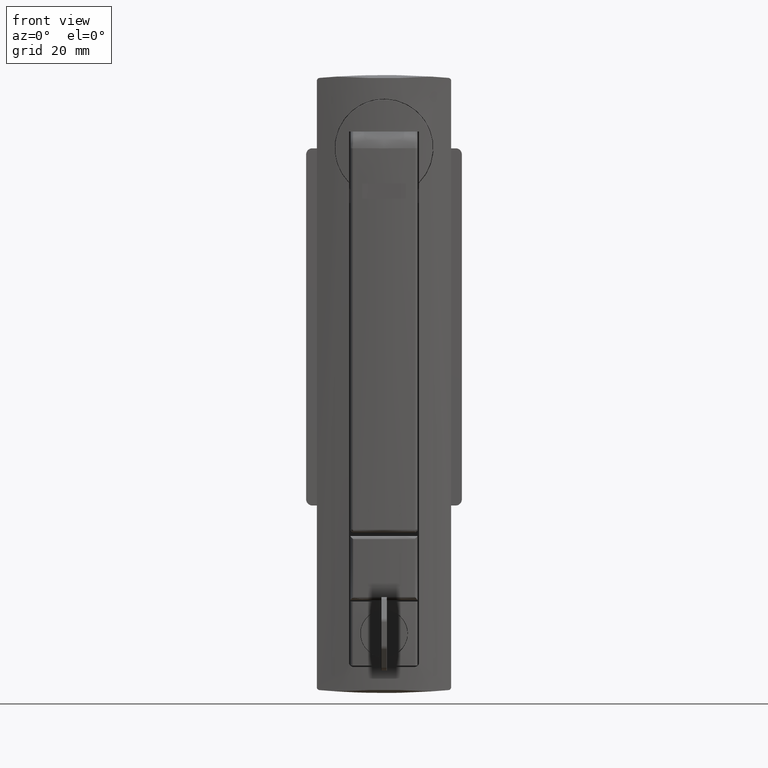
[diagram: clean part render]
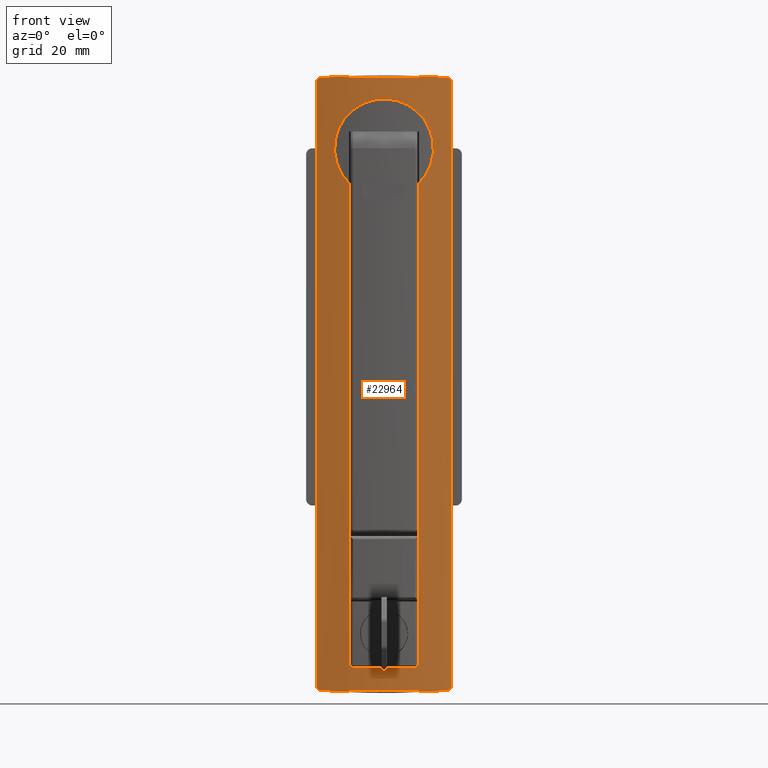
[diagram: same view with one face highlighted and labeled with its STEP entity id]
A machine part, front view. The second image highlights one B-rep face of the part: STEP entity #22964.
In plain terms, the highlighted face is a freeform B-spline surface patch.
Its self-contained STEP definition (entity closure, byte-faithful):
#20247=CARTESIAN_POINT('',(3.160465155945720,-21.086956521739200,-177.481436092780510));
#20248=VERTEX_POINT('',#20247);
#20249=CARTESIAN_POINT('',(3.399999948023935,-21.999999824456800,-176.485223985181510));
#20250=VERTEX_POINT('',#20249);
#20251=CARTESIAN_POINT('',(3.160465155945720,-21.086956521739200,-177.481436092780510));
#20252=CARTESIAN_POINT('',(3.176146796481194,-21.148113938493541,-177.476097835797900));
#20253=CARTESIAN_POINT('',(3.191544668788875,-21.207881420078909,-177.465254642743790));
#20254=CARTESIAN_POINT('',(3.214222281856353,-21.295527532909979,-177.441038910225100));
#20255=CARTESIAN_POINT('',(3.221711087124875,-21.324406585618782,-177.431633298113010));
#20256=CARTESIAN_POINT('',(3.236542511079366,-21.381480005002889,-177.410104099671800));
#20257=CARTESIAN_POINT('',(3.243917960827226,-21.409800081027640,-177.397917423780600));
#20258=CARTESIAN_POINT('',(3.265564633253846,-21.492748953609759,-177.357565744932090));
#20259=CARTESIAN_POINT('',(3.279246630147217,-21.544949924546419,-177.325917164462710));
#20260=CARTESIAN_POINT('',(3.298641397255683,-21.618693575225329,-177.271450492279200));
#20261=CARTESIAN_POINT('',(3.304917078294625,-21.642510391936899,-177.252121979288090));
#20262=CARTESIAN_POINT('',(3.317073973934262,-21.688570931926840,-177.211049176820010));
#20263=CARTESIAN_POINT('',(3.322981713096209,-21.710914598155849,-177.189185079041490));
#20264=CARTESIAN_POINT('',(3.339757081506664,-21.774265761854270,-177.121113661288010));
#20265=CARTESIAN_POINT('',(3.349762748644098,-21.811921379892389,-177.072263350285110));
#20266=CARTESIAN_POINT('',(3.362983116339236,-21.861570908360239,-176.993803827186810));
#20267=CARTESIAN_POINT('',(3.367090066390817,-21.876974620337009,-176.966781231287090));
#20268=CARTESIAN_POINT('',(3.374677070130000,-21.905403507013052,-176.910930874344190));
#20269=CARTESIAN_POINT('',(3.378145821752639,-21.918386229950880,-176.882141354267500));
#20270=CARTESIAN_POINT('',(3.387367400727190,-21.952874639394409,-176.794960296551890));
#20271=CARTESIAN_POINT('',(3.392033081510069,-21.970287650008299,-176.735152272849600));
#20272=CARTESIAN_POINT('',(3.398359666262946,-21.993888657775148,-176.612139739448910));
#20273=CARTESIAN_POINT('',(3.399999995098918,-21.999999999914380,-176.548647419653290));
#20274=CARTESIAN_POINT('',(3.399999948023935,-21.999999824456800,-176.485223985181510));
#20275=B_SPLINE_CURVE_WITH_KNOTS('',3,(#20251,#20252,#20253,#20254,#20255,#20256,#20257,#20258,#20259,#20260,#20261,#20262,#20263,#20264,#20265,#20266,#20267,#20268,#20269,#20270,#20271,#20272,#20273,#20274),.UNSPECIFIED.,.F.,.U.,(4,2,2,2,2,2,2,2,2,2,2,4),(0.0,0.125000000000008,0.187500000000008,0.250000000000009,0.374999999999980,0.437499999999969,0.499999999999957,0.624999999999929,0.687499999999940,0.749999999999951,0.874999999999975,1.0),.UNSPECIFIED.);
#20276=EDGE_CURVE('',#20248,#20250,#20275,.T.);
#20322=CARTESIAN_POINT('',(3.399999948023935,21.999999824456800,-176.485223985181510));
#20323=VERTEX_POINT('',#20322);
#20324=CARTESIAN_POINT('',(3.160465155945705,21.086956521739150,-177.481436092780510));
#20325=VERTEX_POINT('',#20324);
#20326=CARTESIAN_POINT('',(3.399999948023935,21.999999824456800,-176.485223985181510));
#20327=CARTESIAN_POINT('',(3.399999948023935,22.000000000000011,-176.548588373831000));
#20328=CARTESIAN_POINT('',(3.398398214138502,21.994032297920711,-176.610892402960590));
#20329=CARTESIAN_POINT('',(3.393707768017735,21.976535061739071,-176.702830196784990));
#20330=CARTESIAN_POINT('',(3.391760454252788,21.969268476659881,-176.733221341728010));
#20331=CARTESIAN_POINT('',(3.387087709179019,21.951818705563980,-176.793485595569710));
#20332=CARTESIAN_POINT('',(3.384346709018239,21.941577239518409,-176.823473032409400));
#20333=CARTESIAN_POINT('',(3.375121078202764,21.907074003023670,-176.910826166516700));
#20334=CARTESIAN_POINT('',(3.367614240106311,21.878961831067159,-176.966131905503290));
#20335=CARTESIAN_POINT('',(3.349997427834721,21.812804104831230,-177.071053154368600));
#20336=CARTESIAN_POINT('',(3.339782959999710,21.774362748881789,-177.120961781971600));
#20337=CARTESIAN_POINT('',(3.317553248029276,21.690415063566260,-177.211259282618190));
#20338=CARTESIAN_POINT('',(3.305480786437767,21.644695794076458,-177.252136077944810));
#20339=CARTESIAN_POINT('',(3.285972379716216,21.570524228630990,-177.307080913592190));
#20340=CARTESIAN_POINT('',(3.279204581339683,21.544746779559240,-177.324386524109090));
#20341=CARTESIAN_POINT('',(3.265445665848451,21.492235476093160,-177.356227462014400));
#20342=CARTESIAN_POINT('',(3.258434505045103,21.465425825314519,-177.370833605037690));
#20343=CARTESIAN_POINT('',(3.237022560574725,21.383378981339220,-177.410817279924600));
#20344=CARTESIAN_POINT('',(3.222246676233270,21.326537237962519,-177.432391819737800));
#20345=CARTESIAN_POINT('',(3.191696434791511,21.208471471839189,-177.465169453063910));
#20346=CARTESIAN_POINT('',(3.176133804474773,21.148063270481490,-177.476102258464610));
#20347=CARTESIAN_POINT('',(3.160465155945715,21.086956521739150,-177.481436092780510));
#20348=B_SPLINE_CURVE_WITH_KNOTS('',3,(#20326,#20327,#20328,#20329,#20330,#20331,#20332,#20333,#20334,#20335,#20336,#20337,#20338,#20339,#20340,#20341,#20342,#20343,#20344,#20345,#20346,#20347),.UNSPECIFIED.,.F.,.U.,(4,2,2,2,2,2,2,2,2,2,4),(0.0,0.125000000000003,0.187500000000003,0.250000000000004,0.375000000000003,0.500000000000001,0.625000000000000,0.687500000000002,0.750000000000004,0.875000000000002,1.0),.UNSPECIFIED.);
#20349=EDGE_CURVE('',#20323,#20325,#20348,.T.);
#20395=CARTESIAN_POINT('',(3.160465155945705,21.086956521739150,23.081436092780699));
#20396=VERTEX_POINT('',#20395);
#20397=CARTESIAN_POINT('',(3.399999948023935,21.999999824456800,22.085223985181649));
#20398=VERTEX_POINT('',#20397);
#20399=CARTESIAN_POINT('',(3.160465155945700,21.086956521739150,23.081436092780649));
#20400=CARTESIAN_POINT('',(3.176146796481175,21.148113938493491,23.076097835798091));
#20401=CARTESIAN_POINT('',(3.191544668788872,21.207881420078881,23.065254642743859));
#20402=CARTESIAN_POINT('',(3.214222281856351,21.295527532909940,23.041038910225222));
#20403=CARTESIAN_POINT('',(3.221711087124863,21.324406585618750,23.031633298113171));
#20404=CARTESIAN_POINT('',(3.236542511079352,21.381480005002850,23.010104099671828));
#20405=CARTESIAN_POINT('',(3.243917960827213,21.409800081027601,22.997917423780692));
#20406=CARTESIAN_POINT('',(3.265564633253833,21.492748953609730,22.957565744932189));
#20407=CARTESIAN_POINT('',(3.279246630147203,21.544949924546358,22.925917164462771));
#20408=CARTESIAN_POINT('',(3.298641397255671,21.618693575225290,22.871450492279401));
#20409=CARTESIAN_POINT('',(3.304917078294613,21.642510391936860,22.852121979288281));
#20410=CARTESIAN_POINT('',(3.317073973934251,21.688570931926801,22.811049176820159));
#20411=CARTESIAN_POINT('',(3.322981713096202,21.710914598155831,22.789185079041609));
#20412=CARTESIAN_POINT('',(3.339757081506654,21.774265761854249,22.721113661288140));
#20413=CARTESIAN_POINT('',(3.349762748644087,21.811921379892361,22.672263350285149));
#20414=CARTESIAN_POINT('',(3.362983116339227,21.861570908360228,22.593803827186971));
#20415=CARTESIAN_POINT('',(3.367090066390790,21.876974620336998,22.566781231287280));
#20416=CARTESIAN_POINT('',(3.374677070129975,21.905403507013041,22.510930874344300));
#20417=CARTESIAN_POINT('',(3.378145821752632,21.918386229950880,22.482141354267679));
#20418=CARTESIAN_POINT('',(3.387367400727183,21.952874639394409,22.394960296552039));
#20419=CARTESIAN_POINT('',(3.392033081510077,21.970287650008281,22.335152272849712));
#20420=CARTESIAN_POINT('',(3.398359666262956,21.993888657775141,22.212139739448951));
#20421=CARTESIAN_POINT('',(3.399999995098914,21.999999999914380,22.148647419653241));
#20422=CARTESIAN_POINT('',(3.399999948023935,21.999999824456800,22.085223985181649));
#20423=B_SPLINE_CURVE_WITH_KNOTS('',3,(#20399,#20400,#20401,#20402,#20403,#20404,#20405,#20406,#20407,#20408,#20409,#20410,#20411,#20412,#20413,#20414,#20415,#20416,#20417,#20418,#20419,#20420,#20421,#20422),.UNSPECIFIED.,.F.,.U.,(4,2,2,2,2,2,2,2,2,2,2,4),(0.0,0.124999999999996,0.187499999999991,0.249999999999986,0.374999999999982,0.437499999999982,0.499999999999983,0.624999999999984,0.687499999999986,0.749999999999988,0.874999999999994,1.0),.UNSPECIFIED.);
#20424=EDGE_CURVE('',#20396,#20398,#20423,.T.);
#20470=CARTESIAN_POINT('',(3.399999948023935,-21.999999824456800,22.085223985181649));
#20471=VERTEX_POINT('',#20470);
#20472=CARTESIAN_POINT('',(3.160465155945730,-21.086956521739200,23.081436092780649));
#20473=VERTEX_POINT('',#20472);
#20474=CARTESIAN_POINT('',(3.399999948023935,-21.999999824456800,22.085223985181649));
#20475=CARTESIAN_POINT('',(3.399999948023935,-22.0,22.148588373831071));
#20476=CARTESIAN_POINT('',(3.398398214138481,-21.994032297920700,22.210892402960649));
#20477=CARTESIAN_POINT('',(3.393707768017714,-21.976535061739060,22.302830196785131));
#20478=CARTESIAN_POINT('',(3.391760454252784,-21.969268476659870,22.333221341728109));
#20479=CARTESIAN_POINT('',(3.387087709179015,-21.951818705563969,22.393485595569832));
#20480=CARTESIAN_POINT('',(3.384346709018232,-21.941577239518391,22.423473032409550));
#20481=CARTESIAN_POINT('',(3.375121078202759,-21.907074003023649,22.510826166516821));
#20482=CARTESIAN_POINT('',(3.367614240106297,-21.878961831067130,22.566131905503330));
#20483=CARTESIAN_POINT('',(3.349997427834713,-21.812804104831230,22.671053154368810));
#20484=CARTESIAN_POINT('',(3.339782959999703,-21.774362748881760,22.720961781971699));
#20485=CARTESIAN_POINT('',(3.317553248029272,-21.690415063566260,22.811259282618320));
#20486=CARTESIAN_POINT('',(3.305480786437780,-21.644695794076469,22.852136077945019));
#20487=CARTESIAN_POINT('',(3.285972379716230,-21.570524228631012,22.907080913592289));
#20488=CARTESIAN_POINT('',(3.279204581339669,-21.544746779559240,22.924386524109210));
#20489=CARTESIAN_POINT('',(3.265445665848441,-21.492235476093182,22.956227462014461));
#20490=CARTESIAN_POINT('',(3.258434505045095,-21.465425825314519,22.970833605037789));
#20491=CARTESIAN_POINT('',(3.237022560574721,-21.383378981339231,23.010817279924719));
#20492=CARTESIAN_POINT('',(3.222246676233281,-21.326537237962540,23.032391819737850));
#20493=CARTESIAN_POINT('',(3.191696434791526,-21.208471471839239,23.065169453064058));
#20494=CARTESIAN_POINT('',(3.176133804474780,-21.148063270481540,23.076102258464850));
#20495=CARTESIAN_POINT('',(3.160465155945730,-21.086956521739200,23.081436092780649));
#20496=B_SPLINE_CURVE_WITH_KNOTS('',3,(#20474,#20475,#20476,#20477,#20478,#20479,#20480,#20481,#20482,#20483,#20484,#20485,#20486,#20487,#20488,#20489,#20490,#20491,#20492,#20493,#20494,#20495),.UNSPECIFIED.,.F.,.U.,(4,2,2,2,2,2,2,2,2,2,4),(0.0,0.124999999999993,0.187499999999993,0.249999999999993,0.374999999999995,0.499999999999997,0.624999999999999,0.687500000000000,0.750000000000001,0.875000000000001,1.0),.UNSPECIFIED.);
#20497=EDGE_CURVE('',#20471,#20473,#20496,.T.);
#20543=CARTESIAN_POINT('',(1.944449914768760,15.594107204586800,-177.898086398408990));
#20544=VERTEX_POINT('',#20543);
#20545=CARTESIAN_POINT('',(1.944449914768726,15.594107204586811,-177.898086398409110));
#20546=CARTESIAN_POINT('',(2.288635519542229,17.436059759161999,-177.779392874715110));
#20547=CARTESIAN_POINT('',(2.693808360119248,19.267024220712099,-177.640292807621710));
#20548=CARTESIAN_POINT('',(3.160465155945679,21.086956521739161,-177.481436092780710));
#20549=QUASI_UNIFORM_CURVE('',3,(#20545,#20546,#20547,#20548),.UNSPECIFIED.,.F.,.U.);
#20550=EDGE_CURVE('',#20544,#20325,#20549,.T.);
#20567=CARTESIAN_POINT('',(1.944449914768760,-15.594107204586800,-177.898086398408990));
#20568=VERTEX_POINT('',#20567);
#20569=CARTESIAN_POINT('',(3.160465155945694,-21.086956521739211,-177.481436092780710));
#20570=CARTESIAN_POINT('',(2.692802118711630,-19.263099942191481,-177.640635346733400));
#20571=CARTESIAN_POINT('',(2.287897529962212,-17.432110315102420,-177.779647372818690));
#20572=CARTESIAN_POINT('',(1.944449914768726,-15.594107204586800,-177.898086398409110));
#20573=QUASI_UNIFORM_CURVE('',3,(#20569,#20570,#20571,#20572),.UNSPECIFIED.,.F.,.U.);
#20574=EDGE_CURVE('',#20248,#20568,#20573,.T.);
#20606=CARTESIAN_POINT('',(1.944449914768875,-15.594107204587550,23.498086398409001));
#20607=VERTEX_POINT('',#20606);
#20608=CARTESIAN_POINT('',(1.944449914768860,-15.594107204587550,23.498086398409001));
#20609=CARTESIAN_POINT('',(2.288635519529671,-17.436059759094729,23.379392874719478));
#20610=CARTESIAN_POINT('',(2.693808360102132,-19.267024220645300,23.240292807627512));
#20611=CARTESIAN_POINT('',(3.160465155945702,-21.086956521739211,23.081436092780692));
#20612=QUASI_UNIFORM_CURVE('',3,(#20608,#20609,#20610,#20611),.UNSPECIFIED.,.F.,.U.);
#20613=EDGE_CURVE('',#20607,#20473,#20612,.T.);
#20630=CARTESIAN_POINT('',(1.944449914768875,15.594107204587550,23.498086398409001));
#20631=VERTEX_POINT('',#20630);
#20632=CARTESIAN_POINT('',(3.160465155945689,21.086956521739150,23.081436092780692));
#20633=CARTESIAN_POINT('',(2.692802118711831,19.263099942192230,23.240635346733399));
#20634=CARTESIAN_POINT('',(2.287897529962414,17.432110315103440,23.379647372818670));
#20635=CARTESIAN_POINT('',(1.944449914768862,15.594107204587550,23.498086398408990));
#20636=QUASI_UNIFORM_CURVE('',3,(#20632,#20633,#20634,#20635),.UNSPECIFIED.,.F.,.U.);
#20637=EDGE_CURVE('',#20396,#20631,#20636,.T.);
#20661=CARTESIAN_POINT('',(1.944449914768859,15.594107204587569,23.498086398408962));
#20662=CARTESIAN_POINT('',(-0.969450992060930,-5.724587E-014,22.493292868522317));
#20663=CARTESIAN_POINT('',(1.944449914768875,-15.594107204587550,23.498086398409001));
#20671=(BOUNDED_CURVE()B_SPLINE_CURVE(2,(#20661,#20662,#20663),.UNSPECIFIED.,.F.,.U.)CURVE()GEOMETRIC_REPRESENTATION_ITEM()QUASI_UNIFORM_CURVE()RATIONAL_B_SPLINE_CURVE((1.0,0.982986110168260,1.0))REPRESENTATION_ITEM(''));
#20672=EDGE_CURVE('',#20631,#20607,#20671,.T.);
#20682=CARTESIAN_POINT('',(1.944449914768720,-15.594107204586800,-177.898086398409110));
#20683=CARTESIAN_POINT('',(-0.969450992060764,0.0,-176.893292868522420));
#20684=CARTESIAN_POINT('',(1.944449914768720,15.594107204586830,-177.898086398409110));
#20692=(BOUNDED_CURVE()B_SPLINE_CURVE(2,(#20682,#20683,#20684),.UNSPECIFIED.,.F.,.U.)CURVE()GEOMETRIC_REPRESENTATION_ITEM()QUASI_UNIFORM_CURVE()RATIONAL_B_SPLINE_CURVE((1.0,0.982986110168268,1.0))REPRESENTATION_ITEM(''));
#20693=EDGE_CURVE('',#20568,#20544,#20692,.T.);
#21490=CARTESIAN_POINT('',(1.282479220963404,-11.500000000000000,-168.500000000000000));
#21491=VERTEX_POINT('',#21490);
#21514=CARTESIAN_POINT('',(1.090997145964014,-10.0,-170.0));
#21515=VERTEX_POINT('',#21514);
#21521=CARTESIAN_POINT('',(1.282479220963441,-11.500000000000000,-168.500000000000000));
#21522=CARTESIAN_POINT('',(1.282479220963442,-11.500000000000000,-168.549578072354110));
#21523=CARTESIAN_POINT('',(1.282140738015424,-11.497524968083960,-168.599186951891710));
#21524=CARTESIAN_POINT('',(1.280813505059759,-11.487810723393769,-168.697074434706590));
#21525=CARTESIAN_POINT('',(1.278836495111763,-11.473335772345591,-168.794059954502810));
#21526=CARTESIAN_POINT('',(1.275582338599117,-11.449449256713150,-168.889262547861900));
#21527=CARTESIAN_POINT('',(1.271684551108403,-11.420774418717190,-168.983558197193590));
#21528=CARTESIAN_POINT('',(1.269398670600784,-11.403930572451911,-169.030483158468290));
#21529=CARTESIAN_POINT('',(1.261708082870795,-11.347099569290650,-169.167125539273800));
#21530=CARTESIAN_POINT('',(1.255467714938726,-11.300801305062899,-169.253341047810410));
#21531=CARTESIAN_POINT('',(1.244532903618079,-11.218981582815671,-169.375491629399390));
#21532=CARTESIAN_POINT('',(1.240618916321979,-11.189594678008920,-169.415049184443890));
#21533=CARTESIAN_POINT('',(1.232277130882613,-11.126675569809590,-169.491490125161500));
#21534=CARTESIAN_POINT('',(1.227909676089172,-11.093598206366430,-169.527830175972700));
#21535=CARTESIAN_POINT('',(1.214257420465466,-10.989684506236250,-169.631411599970510));
#21536=CARTESIAN_POINT('',(1.204427771911109,-10.914210231947530,-169.693264966825890));
#21537=CARTESIAN_POINT('',(1.188649231000660,-10.791558106472189,-169.775088691578390));
#21538=CARTESIAN_POINT('',(1.183206117300475,-10.749007895814801,-169.800533159829510));
#21539=CARTESIAN_POINT('',(1.172217718771418,-10.662564067771861,-169.846628450578210));
#21540=CARTESIAN_POINT('',(1.161070827960587,-10.574341435873430,-169.888247345375900));
#21541=CARTESIAN_POINT('',(1.149631607434856,-10.482623913549141,-169.921077221143800));
#21542=CARTESIAN_POINT('',(1.138052557341260,-10.389140074666100,-169.949467596282200));
#21543=CARTESIAN_POINT('',(1.132172829412127,-10.341348746537260,-169.961474776316410));
#21544=CARTESIAN_POINT('',(1.114467233612297,-10.196387905975721,-169.990349537750400));
#21545=CARTESIAN_POINT('',(1.102705901497997,-10.098713331783729,-170.0));
#21546=CARTESIAN_POINT('',(1.090997145964014,-10.0,-170.0));
#21547=B_SPLINE_CURVE_WITH_KNOTS('',3,(#21521,#21522,#21523,#21524,#21525,#21526,#21527,#21528,#21529,#21530,#21531,#21532,#21533,#21534,#21535,#21536,#21537,#21538,#21539,#21540,#21541,#21542,#21543,#21544,#21545,#21546),.UNSPECIFIED.,.F.,.U.,(4,2,1,2,2,2,2,2,2,2,1,2,2,4),(0.0,0.062500000000008,0.125000000000016,0.187500000000024,0.250000000000031,0.375000000000047,0.437500000000041,0.500000000000034,0.625000000000022,0.687500000000017,0.750000000000012,0.812500000000006,0.875000000000001,1.0),.UNSPECIFIED.);
#21548=EDGE_CURVE('',#21491,#21515,#21547,.T.);
#21566=CARTESIAN_POINT('',(1.090997145964084,10.0,-170.0));
#21567=VERTEX_POINT('',#21566);
#21573=CARTESIAN_POINT('',(1.090997145964057,-9.999999999999982,-170.0));
#21574=CARTESIAN_POINT('',(-0.095140057836979,1.908196E-014,-169.999999999999970));
#21575=CARTESIAN_POINT('',(1.090997145964057,10.0,-170.0));
#21583=(BOUNDED_CURVE()B_SPLINE_CURVE(2,(#21573,#21574,#21575),.UNSPECIFIED.,.F.,.U.)CURVE()GEOMETRIC_REPRESENTATION_ITEM()QUASI_UNIFORM_CURVE()RATIONAL_B_SPLINE_CURVE((1.0,0.993038761517795,1.0))REPRESENTATION_ITEM(''));
#21584=EDGE_CURVE('',#21515,#21567,#21583,.T.);
#21619=CARTESIAN_POINT('',(1.282479220963404,11.500000000000000,-168.500000000000000));
#21620=VERTEX_POINT('',#21619);
#21626=CARTESIAN_POINT('',(1.090997145964014,10.0,-170.0));
#21627=CARTESIAN_POINT('',(1.102719782119424,10.098830355525850,-170.000000000000110));
#21628=CARTESIAN_POINT('',(1.114422161013955,10.196005265145329,-169.990328173894800));
#21629=CARTESIAN_POINT('',(1.131932637689252,10.339388884450020,-169.961912862512410));
#21630=CARTESIAN_POINT('',(1.137761959925052,10.386784061088409,-169.950105984738910));
#21631=CARTESIAN_POINT('',(1.149399388655474,10.480758520059180,-169.921717455150090));
#21632=CARTESIAN_POINT('',(1.155227754094963,10.527496302702071,-169.905046157591100));
#21633=CARTESIAN_POINT('',(1.172301159332480,10.663525846729570,-169.848837154005310));
#21634=CARTESIAN_POINT('',(1.183249557636545,10.749573641634880,-169.802962869442300));
#21635=CARTESIAN_POINT('',(1.198965247343543,10.871753430240650,-169.721654279126710));
#21636=CARTESIAN_POINT('',(1.204094541556772,10.911396198928150,-169.692394050954500));
#21637=CARTESIAN_POINT('',(1.214053801974055,10.987970303047090,-169.629761605149210));
#21638=CARTESIAN_POINT('',(1.218820250979472,11.024414705542780,-169.596799863149900));
#21639=CARTESIAN_POINT('',(1.232481232498143,11.128393731469041,-169.493131059696310));
#21640=CARTESIAN_POINT('',(1.240743628933466,11.190625058076140,-169.417685901525690));
#21641=CARTESIAN_POINT('',(1.251763656441997,11.273087298471591,-169.294784619355990));
#21642=CARTESIAN_POINT('',(1.255209719821905,11.298770552319370,-169.252077682973290));
#21643=CARTESIAN_POINT('',(1.261471978055195,11.345308633847550,-169.165259700037300));
#21644=CARTESIAN_POINT('',(1.267147711741697,11.387343479587470,-169.076598750421710));
#21645=CARTESIAN_POINT('',(1.271649426086093,11.420515686749720,-168.984309660567500));
#21646=CARTESIAN_POINT('',(1.275548300565731,11.449199171334570,-168.890182553972100));
#21647=CARTESIAN_POINT('',(1.277201783801069,11.461336588348029,-168.841990589480990));
#21648=CARTESIAN_POINT('',(1.281171405754993,11.490446731042910,-168.696003298127010));
#21649=CARTESIAN_POINT('',(1.282479220963445,11.500000000000000,-168.598222636545300));
#21650=CARTESIAN_POINT('',(1.282479220963445,11.500000000000000,-168.500000000000000));
#21651=B_SPLINE_CURVE_WITH_KNOTS('',3,(#21626,#21627,#21628,#21629,#21630,#21631,#21632,#21633,#21634,#21635,#21636,#21637,#21638,#21639,#21640,#21641,#21642,#21643,#21644,#21645,#21646,#21647,#21648,#21649,#21650),.UNSPECIFIED.,.F.,.U.,(4,2,2,2,2,2,2,2,2,1,2,2,4),(0.0,0.125000000000012,0.187500000000015,0.250000000000017,0.375000000000012,0.437500000000009,0.500000000000007,0.625000000000005,0.687500000000004,0.750000000000003,0.812500000000002,0.875000000000002,1.0),.UNSPECIFIED.);
#21652=EDGE_CURVE('',#21567,#21620,#21651,.T.);
#21678=CARTESIAN_POINT('',(1.282479220963472,11.500000000000000,-11.410083259994220));
#21679=VERTEX_POINT('',#21678);
#21685=CARTESIAN_POINT('',(1.282479220963404,11.500000000000000,-168.500000000000000));
#21686=CARTESIAN_POINT('',(1.282479220963472,11.500000000000000,-11.410083259994220));
#21687=QUASI_UNIFORM_CURVE('',1,(#21685,#21686),.UNSPECIFIED.,.F.,.U.);
#21688=EDGE_CURVE('',#21620,#21679,#21687,.T.);
#21735=CARTESIAN_POINT('',(1.282479220963404,-11.500000000000000,-11.410083259994201));
#21736=VERTEX_POINT('',#21735);
#21742=CARTESIAN_POINT('',(1.282479220963438,11.500000000000000,-11.410083259994209));
#21743=CARTESIAN_POINT('',(1.358474381024713,12.055860299122131,-10.849842524300600));
#21744=CARTESIAN_POINT('',(1.434240620494005,12.569194135438050,-10.251036304140200));
#21745=CARTESIAN_POINT('',(1.525634050726342,13.157179157666461,-9.453460253831027));
#21746=CARTESIAN_POINT('',(1.552802763379167,13.329527519715681,-9.210488217677634));
#21747=CARTESIAN_POINT('',(1.579508802476383,13.495725422890470,-8.961883771811978));
#21748=CARTESIAN_POINT('',(1.597199897892699,13.605145472634010,-8.794883859266436));
#21749=CARTESIAN_POINT('',(1.605998039062683,13.659221370924030,-8.710663322064537));
#21750=CARTESIAN_POINT('',(1.649536781470688,13.925245140045350,-8.287779637148599));
#21751=CARTESIAN_POINT('',(1.682947004153530,14.124321306113920,-7.943582184376420));
#21752=CARTESIAN_POINT('',(1.778212785806548,14.681426010520550,-6.893731312631435));
#21753=CARTESIAN_POINT('',(1.835105033026742,14.999544243603680,-6.170909367647588));
#21754=CARTESIAN_POINT('',(1.907774423753637,15.397128458540310,-5.052231953908541));
#21755=CARTESIAN_POINT('',(1.929886284150238,15.516337339182590,-4.673576157626935));
#21756=CARTESIAN_POINT('',(1.959534580948517,15.674711569239980,-4.096727578476141));
#21757=CARTESIAN_POINT('',(1.968830631613390,15.724092861926550,-3.902965711758643));
#21758=CARTESIAN_POINT('',(1.986188373775403,15.815912513735171,-3.512427797909597));
#21759=CARTESIAN_POINT('',(1.994205402177554,15.858114898021229,-3.316631451849879));
#21760=CARTESIAN_POINT('',(2.030857067675030,16.050397205861060,-2.337174883052432));
#21761=CARTESIAN_POINT('',(2.049287055698265,16.145114979395551,-1.549894946290551));
#21762=CARTESIAN_POINT('',(2.063692526592232,16.219306182721510,0.031921678703146));
#21763=CARTESIAN_POINT('',(2.059670035470217,16.198788272285700,0.826457817711782));
#21764=CARTESIAN_POINT('',(2.042163999496816,16.108257661765570,1.724556195417276));
#21765=CARTESIAN_POINT('',(2.040037573339658,16.097251352199748,1.824429133961519));
#21766=CARTESIAN_POINT('',(2.035444518720020,16.073448357946251,2.023437828345426));
#21767=CARTESIAN_POINT('',(2.028038893320406,16.035028221489021,2.321163875430761));
#21768=CARTESIAN_POINT('',(2.019110302684486,15.988534381322040,2.616550742037149));
#21769=CARTESIAN_POINT('',(1.999288241842629,15.884931657726471,3.204250930068948));
#21770=CARTESIAN_POINT('',(1.983453900121840,15.801724279872440,3.591957064433883));
#21771=CARTESIAN_POINT('',(1.928605897228377,15.510335725047140,4.743002084725901));
#21772=CARTESIAN_POINT('',(1.882243962445116,15.260616759565510,5.494331433691722));
#21773=CARTESIAN_POINT('',(1.813752557910247,14.877861285948550,6.413179782110607));
#21774=CARTESIAN_POINT('',(1.799527563389167,14.797761674339540,6.595928707173522));
#21775=CARTESIAN_POINT('',(1.777433138921220,14.672208856081481,6.868500113102651));
#21776=CARTESIAN_POINT('',(1.769940114964460,14.629444746013309,6.959118825755550));
#21777=CARTESIAN_POINT('',(1.754771739134291,14.542469234607969,7.139087964727879));
#21778=CARTESIAN_POINT('',(1.747088895177443,14.498215421655960,7.228532399792486));
#21779=CARTESIAN_POINT('',(1.708205532287441,14.273148211487269,7.673078731148225));
#21780=CARTESIAN_POINT('',(1.675598683136302,14.080957063342289,8.020164746364028));
#21781=CARTESIAN_POINT('',(1.574174583470450,13.468794084413380,9.036435327368254));
#21782=CARTESIAN_POINT('',(1.501753500276170,13.013425767698781,9.680765820515342));
#21783=CARTESIAN_POINT('',(1.389377189216546,12.259151922877740,10.597632443266249));
#21784=CARTESIAN_POINT('',(1.351293533662887,11.995809021829380,10.894949833479719));
#21785=CARTESIAN_POINT('',(1.303276452791980,11.651315727335700,11.255967403763220));
#21786=CARTESIAN_POINT('',(1.293645511676781,11.581598353612931,11.327688970598521));
#21787=CARTESIAN_POINT('',(1.274427564697555,11.441171899594011,11.469504932775861));
#21788=CARTESIAN_POINT('',(1.245642762354913,11.228876629435300,11.679969302321910));
#21789=CARTESIAN_POINT('',(1.217026974376160,11.011654840861381,11.883716561487240));
#21790=CARTESIAN_POINT('',(1.122201579285137,10.276767060960911,12.548157041703741));
#21791=CARTESIAN_POINT('',(1.048141026348273,9.654425809882026,13.032858661630881));
#21792=CARTESIAN_POINT('',(0.943175595943965,8.669617553150319,13.690637937483000));
#21793=CARTESIAN_POINT('',(0.909206677776864,8.332763930479882,13.898304324778390));
#21794=CARTESIAN_POINT('',(0.860215633215096,7.814329636321704,14.192100154354160));
#21795=CARTESIAN_POINT('',(0.844212463740847,7.639323611434603,14.287078365758889));
#21796=CARTESIAN_POINT('',(0.812934907503066,7.284847150072647,14.471035742808329));
#21797=CARTESIAN_POINT('',(0.797644179657200,7.105149551783615,14.560106440946440));
#21798=CARTESIAN_POINT('',(0.723799307305077,6.202810097543261,14.986752232963321));
#21799=CARTESIAN_POINT('',(0.672589319920497,5.463443798385681,15.271401702935350));
#21800=CARTESIAN_POINT('',(0.588583666746026,3.950606015274403,15.730786382842190));
#21801=CARTESIAN_POINT('',(0.555777494681370,3.177135599353742,15.905523243122120));
#21802=CARTESIAN_POINT('',(0.530752941473061,2.287047520665984,16.038061337165640));
#21803=CARTESIAN_POINT('',(0.528137621599240,2.187870491783009,16.051893401656010));
#21804=CARTESIAN_POINT('',(0.523243005688815,1.988954467124941,16.077752305426468));
#21805=CARTESIAN_POINT('',(0.520964143256572,1.889212148817169,16.089776828226249));
#21806=CARTESIAN_POINT('',(0.514664723696557,1.590438825403618,16.122985705014660));
#21807=CARTESIAN_POINT('',(0.511170148974087,1.391428580521967,16.141365482063652));
#21808=CARTESIAN_POINT('',(0.502789817847408,0.794906039286120,16.185398878918701));
#21809=CARTESIAN_POINT('',(0.500007303251477,0.397901265158108,16.199961726329430));
#21810=CARTESIAN_POINT('',(0.499985436567304,-0.791118561860137,16.200076321625509));
#21811=CARTESIAN_POINT('',(0.511070599531990,-1.581149420230686,16.142287034724220));
#21812=CARTESIAN_POINT('',(0.538538342613546,-2.565339722699243,15.996831674418340));
#21813=CARTESIAN_POINT('',(0.544712550980081,-2.762009549529291,15.964061121153360));
#21814=CARTESIAN_POINT('',(0.554990121286336,-3.056758711304150,15.909312123368791));
#21815=CARTESIAN_POINT('',(0.558585354686453,-3.154965824343061,15.890130010711070));
#21816=CARTESIAN_POINT('',(0.566113787762563,-3.351294159263004,15.849885443376641));
#21817=CARTESIAN_POINT('',(0.570050420135947,-3.449490719207140,15.828804497769640));
#21818=CARTESIAN_POINT('',(0.590491212777239,-3.938284258992721,15.719113394320489));
#21819=CARTESIAN_POINT('',(0.609313296057677,-4.323631131700452,15.617418652665640));
#21820=CARTESIAN_POINT('',(0.672539396246519,-5.463120347290839,15.271690221241681));
#21821=CARTESIAN_POINT('',(0.723702391895930,-6.200796641645000,14.987227888438980));
#21822=CARTESIAN_POINT('',(0.811489592935864,-7.274739846287216,14.480154690527341));
#21823=CARTESIAN_POINT('',(0.842593310971764,-7.627270834491177,14.297679387148611));
#21824=CARTESIAN_POINT('',(0.883512909161980,-8.060997407134712,14.052410889850570));
#21825=CARTESIAN_POINT('',(0.891798790047456,-8.147395407566860,14.002497313249661));
#21826=CARTESIAN_POINT('',(0.908567759159407,-8.319491795843261,13.900936630087280));
#21827=CARTESIAN_POINT('',(0.917057413547235,-8.405253423992868,13.849248859226460));
#21828=CARTESIAN_POINT('',(0.942710601574892,-8.660484155636993,13.692185016836319));
#21829=CARTESIAN_POINT('',(0.960084777211709,-8.828179778635093,13.584650486035130));
#21830=CARTESIAN_POINT('',(1.048122334842031,-9.654578342040200,13.033069843424640));
#21831=CARTESIAN_POINT('',(1.122278516875058,-10.277243189262320,12.547532431729820));
#21832=CARTESIAN_POINT('',(1.235529841125775,-11.155110024682150,11.754109696670930));
#21833=CARTESIAN_POINT('',(1.273618043259294,-11.438337788791991,11.478736950053710));
#21834=CARTESIAN_POINT('',(1.330807436894697,-11.848927890223370,11.049079200867620));
#21835=CARTESIAN_POINT('',(1.359416236293736,-12.050656367123681,10.830096347415889));
#21836=CARTESIAN_POINT('',(1.387959488305397,-12.246970269819499,10.604794639339669));
#21837=CARTESIAN_POINT('',(1.406963883816285,-12.376633233103419,10.453176548095330));
#21838=CARTESIAN_POINT('',(1.416463612373276,-12.440923468222779,10.376579259074200));
#21839=CARTESIAN_POINT('',(1.501558234448676,-13.012369203716430,9.682797884691935));
#21840=CARTESIAN_POINT('',(1.574203104488730,-13.468943149391990,9.036047829314986));
#21841=CARTESIAN_POINT('',(1.709124784724769,-14.283332777063521,7.684334370320221));
#21842=CARTESIAN_POINT('',(1.771417057679770,-14.641141846771790,6.979368613371750));
#21843=CARTESIAN_POINT('',(1.840070776844093,-15.024968855787190,6.060525941185978));
#21844=CARTESIAN_POINT('',(1.853340240806904,-15.098545841427381,5.874865890013096));
#21845=CARTESIAN_POINT('',(1.878884004679882,-15.239210552566140,5.499690671836023));
#21846=CARTESIAN_POINT('',(1.891099841339795,-15.305976238075161,5.311013967482080));
#21847=CARTESIAN_POINT('',(1.925920200261079,-15.495145313980739,4.743372592561699));
#21848=CARTESIAN_POINT('',(1.946744464742319,-15.606695737150231,4.362110015477433));
#21849=CARTESIAN_POINT('',(2.001677954846901,-15.898550274380440,3.209972219419535));
#21850=CARTESIAN_POINT('',(2.028248235009213,-16.036285481851870,2.430789973869286));
#21851=CARTESIAN_POINT('',(2.051580355562456,-16.156957367658229,1.245201432621838));
#21852=CARTESIAN_POINT('',(2.056604063734799,-16.182803011835041,0.847192061536946));
#21853=CARTESIAN_POINT('',(2.059287645753991,-16.196613713381758,0.346059534337433));
#21854=CARTESIAN_POINT('',(2.059644441888849,-16.198449266302280,0.245559491392079));
#21855=CARTESIAN_POINT('',(2.059994073962863,-16.200247968099760,0.044987430033058));
#21856=CARTESIAN_POINT('',(2.059974704716485,-16.200147861857790,-0.255436138479038));
#21857=CARTESIAN_POINT('',(2.058337956050010,-16.191728862302281,-0.554567856203218));
#21858=CARTESIAN_POINT('',(2.049349543830851,-16.145437421676132,-1.548843239933092));
#21859=CARTESIAN_POINT('',(2.030854734999191,-16.050369431704830,-2.335250658070276));
#21860=CARTESIAN_POINT('',(1.987321557960866,-15.822008460204531,-3.501569207908374));
#21861=CARTESIAN_POINT('',(1.970178594135231,-15.731537034593011,-3.888117948508101));
#21862=CARTESIAN_POINT('',(1.940665883020151,-15.573934568683059,-4.464553920992469));
#21863=CARTESIAN_POINT('',(1.930195320640916,-15.517747446902540,-4.656134162623493));
#21864=CARTESIAN_POINT('',(1.913559318005271,-15.427905751807820,-4.942645233565234));
#21865=CARTESIAN_POINT('',(1.907852897712693,-15.396998367152500,-5.038101618742980));
#21866=CARTESIAN_POINT('',(1.896175569813187,-15.333542717325381,-5.228048811443461));
#21867=CARTESIAN_POINT('',(1.890202813420771,-15.300984673062480,-5.322577853125131));
#21868=CARTESIAN_POINT('',(1.835280122829731,-15.000556176634721,-6.169376008591335));
#21869=CARTESIAN_POINT('',(1.778167798984935,-14.681136520673100,-6.894056680929795));
#21870=CARTESIAN_POINT('',(1.651575600014192,-13.940890832480020,-8.289472230207950));
#21871=CARTESIAN_POINT('',(1.582081186487082,-13.520066117734769,-8.960206511010306));
#21872=CARTESIAN_POINT('',(1.499270864555792,-12.987601393122601,-9.683603193642359));
#21873=CARTESIAN_POINT('',(1.489996085789593,-12.927551884913351,-9.763625094605136));
#21874=CARTESIAN_POINT('',(1.471389487986467,-12.806199916376960,-9.922258635357002));
#21875=CARTESIAN_POINT('',(1.443386991558547,-12.622250090416570,-10.158161529412030));
#21876=CARTESIAN_POINT('',(1.415152071138071,-12.432584128411539,-10.387980819176949));
#21877=CARTESIAN_POINT('',(1.358490197990524,-12.045729985280550,-10.839629309168670));
#21878=CARTESIAN_POINT('',(1.320460105679821,-11.777808033068750,-11.130085970974219));
#21879=CARTESIAN_POINT('',(1.282479220963445,-11.499999999999989,-11.410083259994209));
#21880=B_SPLINE_CURVE_WITH_KNOTS('',3,(#21742,#21743,#21744,#21745,#21746,#21747,#21748,#21749,#21750,#21751,#21752,#21753,#21754,#21755,#21756,#21757,#21758,#21759,#21760,#21761,#21762,#21763,#21764,#21765,#21766,#21767,#21768,#21769,#21770,#21771,#21772,#21773,#21774,#21775,#21776,#21777,#21778,#21779,#21780,#21781,#21782,#21783,#21784,#21785,#21786,#21787,#21788,#21789,#21790,#21791,#21792,#21793,#21794,#21795,#21796,#21797,#21798,#21799,#21800,#21801,#21802,#21803,#21804,#21805,#21806,#21807,#21808,#21809,#21810,#21811,#21812,#21813,#21814,#21815,#21816,#21817,#21818,#21819,#21820,#21821,#21822,#21823,#21824,#21825,#21826,#21827,#21828,#21829,#21830,#21831,#21832,#21833,#21834,#21835,#21836,#21837,#21838,#21839,#21840,#21841,#21842,#21843,#21844,#21845,#21846,#21847,#21848,#21849,#21850,#21851,#21852,#21853,#21854,#21855,#21856,#21857,#21858,#21859,#21860,#21861,#21862,#21863,#21864,#21865,#21866,#21867,#21868,#21869,#21870,#21871,#21872,#21873,#21874,#21875,#21876,#21877,#21878,#21879),.UNSPECIFIED.,.F.,.U.,(4,2,1,2,2,2,2,2,2,2,2,2,2,1,2,2,2,2,2,2,2,2,2,2,1,2,2,2,2,2,2,2,2,2,2,2,2,2,2,2,2,2,2,2,2,2,2,2,1,2,2,2,2,2,2,2,2,2,2,1,2,2,2,2,2,2,2,2,2,1,2,4),(0.0,0.031250000000000,0.039062500000000,0.042968750000000,0.046875000000000,0.062500000000000,0.093750000000000,0.109375000000000,0.117187500000000,0.125000000000000,0.156250000000000,0.187500000000000,0.191406250000000,0.195312500000000,0.203125000000000,0.218750000000000,0.250000000000000,0.257812500000000,0.261718750000000,0.265625000000000,0.281250000000000,0.312500000000001,0.328125000000001,0.332031250000001,0.335937500000001,0.343750000000001,0.375000000000001,0.390625000000001,0.398437500000001,0.406250000000001,0.437500000000001,0.468750000000001,0.472656250000001,0.476562500000001,0.484375000000002,0.500000000000002,0.531250000000002,0.539062500000002,0.542968750000002,0.546875000000002,0.562500000000002,0.593750000000002,0.609375000000002,0.613281250000002,0.617187500000002,0.625000000000002,0.656250000000002,0.671875000000002,0.679687500000002,0.683593750000002,0.687500000000002,0.718750000000002,0.750000000000002,0.757812500000002,0.765625000000001,0.781250000000001,0.812500000000001,0.828125000000001,0.832031250000001,0.835937500000001,0.843750000000001,0.875000000000001,0.890625000000001,0.898437500000001,0.902343750000001,0.906250000000001,0.937500000000000,0.968750000000000,0.972656250000000,0.976562500000000,0.984375000000000,1.0),.UNSPECIFIED.);
#21881=EDGE_CURVE('',#21679,#21736,#21880,.T.);
#21906=CARTESIAN_POINT('',(1.282479220963404,-11.500000000000000,-11.410083259994201));
#21907=CARTESIAN_POINT('',(1.282479220963404,-11.500000000000000,-168.500000000000000));
#21908=QUASI_UNIFORM_CURVE('',1,(#21906,#21907),.UNSPECIFIED.,.F.,.U.);
#21909=EDGE_CURVE('',#21736,#21491,#21908,.T.);
#22781=CARTESIAN_POINT('',(3.399999948023935,-21.999999824456800,-176.485223985181510));
#22782=CARTESIAN_POINT('',(3.399999948023935,-21.999999824456800,22.085223985181649));
#22783=QUASI_UNIFORM_CURVE('',1,(#22781,#22782),.UNSPECIFIED.,.F.,.U.);
#22784=EDGE_CURVE('',#20250,#20471,#22783,.T.);
#22795=CARTESIAN_POINT('',(3.399999948023935,21.999999824456800,-176.485223985181510));
#22796=CARTESIAN_POINT('',(3.399999948023935,21.999999824456800,22.085223985181649));
#22797=QUASI_UNIFORM_CURVE('',1,(#22795,#22796),.UNSPECIFIED.,.F.,.U.);
#22798=EDGE_CURVE('',#20323,#20398,#22797,.T.);
#22928=CARTESIAN_POINT('',(3.595105970551543,-22.714722998648220,-182.932990718329510));
#22929=CARTESIAN_POINT('',(3.595105970551543,-22.714722998648220,28.658863326327459));
#22930=CARTESIAN_POINT('',(-2.923225390592586,0.759926843028964,-182.932990718329480));
#22931=CARTESIAN_POINT('',(-2.923225390592586,0.759926843028964,28.658863326327467));
#22932=CARTESIAN_POINT('',(3.998067398406895,24.118940843024188,-182.932990718329510));
#22933=CARTESIAN_POINT('',(3.998067398406895,24.118940843024188,28.658863326327463));
#22941=(BOUNDED_SURFACE()B_SPLINE_SURFACE(1,2,((#22928,#22930,#22932),(#22929,#22931,#22933)),.UNSPECIFIED.,.F.,.F.,.U.)B_SPLINE_SURFACE_WITH_KNOTS((2,2),(3,3),(0.0,211.591854044656910),(0.0,47.761768436565973),.UNSPECIFIED.)GEOMETRIC_REPRESENTATION_ITEM()RATIONAL_B_SPLINE_SURFACE(((1.0,0.958876461561498,0.995159306859968),(1.0,0.958876461561498,0.995159306859968)))REPRESENTATION_ITEM('')SURFACE());
#22942=ORIENTED_EDGE('',*,*,#22784,.T.);
#22943=ORIENTED_EDGE('',*,*,#20497,.T.);
#22944=ORIENTED_EDGE('',*,*,#20613,.F.);
#22945=ORIENTED_EDGE('',*,*,#20672,.F.);
#22946=ORIENTED_EDGE('',*,*,#20637,.F.);
#22947=ORIENTED_EDGE('',*,*,#20424,.T.);
#22948=ORIENTED_EDGE('',*,*,#22798,.F.);
#22949=ORIENTED_EDGE('',*,*,#20349,.T.);
#22950=ORIENTED_EDGE('',*,*,#20550,.F.);
#22951=ORIENTED_EDGE('',*,*,#20693,.F.);
#22952=ORIENTED_EDGE('',*,*,#20574,.F.);
#22953=ORIENTED_EDGE('',*,*,#20276,.T.);
#22954=EDGE_LOOP('',(#22942,#22943,#22944,#22945,#22946,#22947,#22948,#22949,#22950,#22951,#22952,#22953));
#22955=FACE_OUTER_BOUND('',#22954,.T.);
#22956=ORIENTED_EDGE('',*,*,#21881,.T.);
#22957=ORIENTED_EDGE('',*,*,#21909,.T.);
#22958=ORIENTED_EDGE('',*,*,#21548,.T.);
#22959=ORIENTED_EDGE('',*,*,#21584,.T.);
#22960=ORIENTED_EDGE('',*,*,#21652,.T.);
#22961=ORIENTED_EDGE('',*,*,#21688,.T.);
#22962=EDGE_LOOP('',(#22956,#22957,#22958,#22959,#22960,#22961));
#22963=FACE_BOUND('',#22962,.T.);
#22964=ADVANCED_FACE('',(#22955,#22963),#22941,.T.);